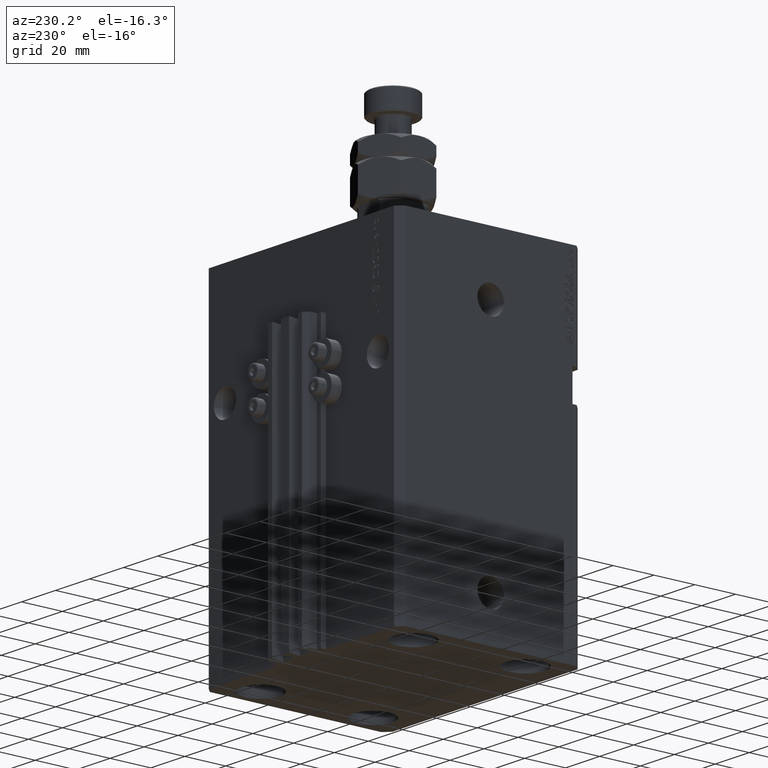
[diagram: clean part render]
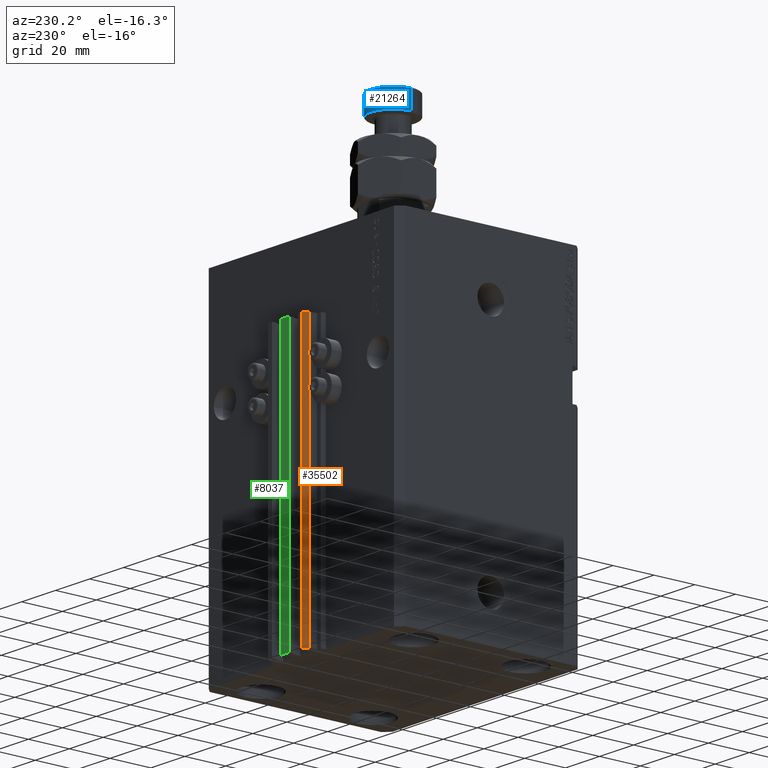
[diagram: same view with three faces highlighted in distinct colors, each labeled with its STEP entity id]
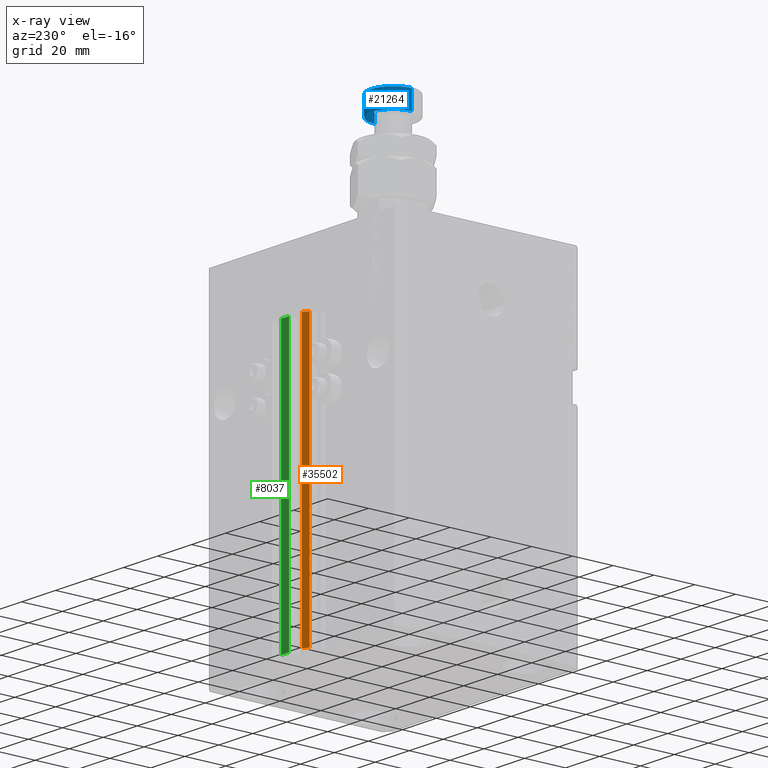
[diagram: x-ray of the same camera — body ghosted, the three highlighted faces saturated]
A machine part, auxiliary view with three faces highlighted in distinct colors.
The next image is the same camera in x-ray (body ghosted, the three faces saturated) — at least one of them is partly hidden behind the body in this view.
Their STEP definitions:

[orange] entity #35502 — the highlighted planar face has unit normal (-0.7071, 0.7071, 0).
#86 = LINE ( 'NONE', #35850, #46999 ) ;
#906 = CARTESIAN_POINT ( 'NONE',  ( -10.00000000000000000, 52.99999999999999289, -165.0000000000000000 ) ) ;
#1109 = DIRECTION ( 'NONE',  ( -0.7071067811865472397, -0.7071067811865479058, 0.000000000000000000 ) ) ;
#2079 = VERTEX_POINT ( 'NONE', #15538 ) ;
#8361 = PLANE ( 'NONE',  #21803 ) ;
#8825 = LINE ( 'NONE', #33261, #27125 ) ;
#11484 = VERTEX_POINT ( 'NONE', #50822 ) ;
#15538 = CARTESIAN_POINT ( 'NONE',  ( -10.00000000000000000, 52.99999999999999289, -33.00000000000000000 ) ) ;
#15765 = CARTESIAN_POINT ( 'NONE',  ( -10.00000000000000000, 52.99999999999999289, -165.0000000000000000 ) ) ;
#15978 = DIRECTION ( 'NONE',  ( 0.000000000000000000, 0.000000000000000000, 1.000000000000000000 ) ) ;
#19427 = FACE_OUTER_BOUND ( 'NONE', #21077, .T. ) ;
#21077 = EDGE_LOOP ( 'NONE', ( #40554, #22708, #44416, #46623 ) ) ;
#21162 = EDGE_CURVE ( 'NONE', #38437, #2079, #86, .T. ) ;
#21220 = EDGE_CURVE ( 'NONE', #2079, #27923, #8825, .T. ) ;
#21803 = AXIS2_PLACEMENT_3D ( 'NONE', #906, #31520, #43375 ) ;
#22708 = ORIENTED_EDGE ( 'NONE', *, *, #21162, .F. ) ;
#23672 = CARTESIAN_POINT ( 'NONE',  ( -12.00000000000000000, 50.99999999999999289, -165.0000000000000000 ) ) ;
#26881 = CARTESIAN_POINT ( 'NONE',  ( -10.00000000000000000, 52.99999999999999289, -165.0000000000000000 ) ) ;
#27125 = VECTOR ( 'NONE', #1109, 999.9999999999998863 ) ;
#27923 = VERTEX_POINT ( 'NONE', #43083 ) ;
#31185 = EDGE_CURVE ( 'NONE', #38437, #11484, #34804, .T. ) ;
#31520 = DIRECTION ( 'NONE',  ( -0.7071067811865479058, 0.7071067811865472397, 0.000000000000000000 ) ) ;
#33261 = CARTESIAN_POINT ( 'NONE',  ( -10.00000000000000000, 52.99999999999999289, -33.00000000000000000 ) ) ;
#34804 = LINE ( 'NONE', #15765, #43946 ) ;
#35502 = ADVANCED_FACE ( 'NONE', ( #19427 ), #8361, .T. ) ;
#35850 = CARTESIAN_POINT ( 'NONE',  ( -10.00000000000000000, 52.99999999999999289, -165.0000000000000000 ) ) ;
#37413 = VECTOR ( 'NONE', #15978, 1000.000000000000000 ) ;
#38437 = VERTEX_POINT ( 'NONE', #26881 ) ;
#40554 = ORIENTED_EDGE ( 'NONE', *, *, #21220, .F. ) ;
#42238 = LINE ( 'NONE', #23672, #37413 ) ;
#43083 = CARTESIAN_POINT ( 'NONE',  ( -12.00000000000000000, 50.99999999999999289, -33.00000000000000000 ) ) ;
#43375 = DIRECTION ( 'NONE',  ( -0.7071067811865472397, -0.7071067811865479058, 0.000000000000000000 ) ) ;
#43827 = DIRECTION ( 'NONE',  ( 0.000000000000000000, 0.000000000000000000, 1.000000000000000000 ) ) ;
#43946 = VECTOR ( 'NONE', #46911, 999.9999999999998863 ) ;
#44416 = ORIENTED_EDGE ( 'NONE', *, *, #31185, .T. ) ;
#46623 = ORIENTED_EDGE ( 'NONE', *, *, #47612, .T. ) ;
#46911 = DIRECTION ( 'NONE',  ( -0.7071067811865472397, -0.7071067811865479058, 0.000000000000000000 ) ) ;
#46999 = VECTOR ( 'NONE', #43827, 1000.000000000000000 ) ;
#47612 = EDGE_CURVE ( 'NONE', #11484, #27923, #42238, .T. ) ;
#50822 = CARTESIAN_POINT ( 'NONE',  ( -12.00000000000000000, 50.99999999999999289, -165.0000000000000000 ) ) ;

[blue] entity #21264 — the highlighted cylindrical surface (edge-blend (fillet) strip) has radius 11 mm, axis along (-0, -0, -1).
#406 = ORIENTED_EDGE ( 'NONE', *, *, #43936, .T. ) ;
#1600 = VERTEX_POINT ( 'NONE', #46235 ) ;
#3688 = CARTESIAN_POINT ( 'NONE',  ( -11.00000000000000000, 0.000000000000000000, 35.50000000000001421 ) ) ;
#4510 = CIRCLE ( 'NONE', #21739, 11.00000000000000000 ) ;
#8138 = EDGE_CURVE ( 'NONE', #44887, #31235, #45845, .T. ) ;
#8236 = CARTESIAN_POINT ( 'NONE',  ( 0.000000000000000000, 0.000000000000000000, 44.50000000000001421 ) ) ;
#8501 = DIRECTION ( 'NONE',  ( 0.000000000000000000, 0.000000000000000000, -1.000000000000000000 ) ) ;
#8505 = CARTESIAN_POINT ( 'NONE',  ( -11.00000000000000000, 0.000000000000000000, 44.50000000000001421 ) ) ;
#11088 = DIRECTION ( 'NONE',  ( -1.000000000000000000, 0.000000000000000000, 0.000000000000000000 ) ) ;
#14139 = EDGE_CURVE ( 'NONE', #34679, #1600, #22376, .T. ) ;
#14954 = CARTESIAN_POINT ( 'NONE',  ( 0.000000000000000000, 0.000000000000000000, 45.00000000000000711 ) ) ;
#17819 = DIRECTION ( 'NONE',  ( -0.000000000000000000, -0.000000000000000000, -1.000000000000000000 ) ) ;
#18213 = ORIENTED_EDGE ( 'NONE', *, *, #8138, .F. ) ;
#18522 = VECTOR ( 'NONE', #38098, 1000.000000000000000 ) ;
#18957 = DIRECTION ( 'NONE',  ( -0.000000000000000000, -0.000000000000000000, 1.000000000000000000 ) ) ;
#21264 = ADVANCED_FACE ( 'NONE', ( #30638 ), #45345, .T. ) ;
#21739 = AXIS2_PLACEMENT_3D ( 'NONE', #8236, #8501, #36295 ) ;
#22302 = DIRECTION ( 'NONE',  ( 1.000000000000000000, 0.000000000000000000, 0.000000000000000000 ) ) ;
#22376 = LINE ( 'NONE', #44836, #18522 ) ;
#28822 = EDGE_LOOP ( 'NONE', ( #406, #41574, #49916, #18213 ) ) ;
#29244 = CIRCLE ( 'NONE', #43943, 11.00000000000000000 ) ;
#30609 = VECTOR ( 'NONE', #50441, 1000.000000000000000 ) ;
#30633 = CARTESIAN_POINT ( 'NONE',  ( -11.00000000000000000, 0.000000000000000000, 45.00000000000000711 ) ) ;
#30638 = FACE_OUTER_BOUND ( 'NONE', #28822, .T. ) ;
#31235 = VERTEX_POINT ( 'NONE', #3688 ) ;
#33936 = EDGE_CURVE ( 'NONE', #1600, #31235, #29244, .T. ) ;
#34679 = VERTEX_POINT ( 'NONE', #37910 ) ;
#36295 = DIRECTION ( 'NONE',  ( 1.000000000000000000, 0.000000000000000000, 0.000000000000000000 ) ) ;
#37910 = CARTESIAN_POINT ( 'NONE',  ( 11.00000000000000000, 1.347111479062088405E-15, 44.50000000000001421 ) ) ;
#38098 = DIRECTION ( 'NONE',  ( -0.000000000000000000, -0.000000000000000000, -1.000000000000000000 ) ) ;
#41574 = ORIENTED_EDGE ( 'NONE', *, *, #14139, .T. ) ;
#42139 = CARTESIAN_POINT ( 'NONE',  ( 0.000000000000000000, 0.000000000000000000, 35.50000000000001421 ) ) ;
#43936 = EDGE_CURVE ( 'NONE', #44887, #34679, #4510, .T. ) ;
#43943 = AXIS2_PLACEMENT_3D ( 'NONE', #42139, #18957, #22302 ) ;
#44548 = AXIS2_PLACEMENT_3D ( 'NONE', #14954, #17819, #11088 ) ;
#44836 = CARTESIAN_POINT ( 'NONE',  ( 11.00000000000000000, 1.347111479062088405E-15, 45.00000000000000711 ) ) ;
#44887 = VERTEX_POINT ( 'NONE', #8505 ) ;
#45345 = CYLINDRICAL_SURFACE ( 'NONE', #44548, 11.00000000000000000 ) ;
#45845 = LINE ( 'NONE', #30633, #30609 ) ;
#46235 = CARTESIAN_POINT ( 'NONE',  ( 11.00000000000000000, 1.347111479062088405E-15, 35.50000000000001421 ) ) ;
#49916 = ORIENTED_EDGE ( 'NONE', *, *, #33936, .T. ) ;
#50441 = DIRECTION ( 'NONE',  ( -0.000000000000000000, -0.000000000000000000, -1.000000000000000000 ) ) ;

[green] entity #8037 — the highlighted planar face has unit normal (0, -1, 0).
#1370 = DIRECTION ( 'NONE',  ( 0.000000000000000000, -0.000000000000000000, -1.000000000000000000 ) ) ;
#3372 = EDGE_LOOP ( 'NONE', ( #12716, #44106, #9552, #29408 ) ) ;
#8037 = ADVANCED_FACE ( 'NONE', ( #36356 ), #9057, .F. ) ;
#8082 = CARTESIAN_POINT ( 'NONE',  ( -2.350000000000003642, 53.00000000000000000, -33.00000000000000000 ) ) ;
#9057 = PLANE ( 'NONE',  #33926 ) ;
#9552 = ORIENTED_EDGE ( 'NONE', *, *, #22516, .F. ) ;
#10594 = VERTEX_POINT ( 'NONE', #44148 ) ;
#12716 = ORIENTED_EDGE ( 'NONE', *, *, #33494, .T. ) ;
#18229 = EDGE_CURVE ( 'NONE', #10594, #27961, #31356, .T. ) ;
#18763 = CARTESIAN_POINT ( 'NONE',  ( -2.350000000000003642, 53.00000000000000000, -165.0000000000000000 ) ) ;
#21397 = DIRECTION ( 'NONE',  ( 0.000000000000000000, -1.000000000000000000, 0.000000000000000000 ) ) ;
#21412 = CARTESIAN_POINT ( 'NONE',  ( -2.350000000000003642, 53.00000000000000000, -33.00000000000000000 ) ) ;
#21645 = CARTESIAN_POINT ( 'NONE',  ( -2.350000000000003642, 53.00000000000000000, -165.0000000000000000 ) ) ;
#22516 = EDGE_CURVE ( 'NONE', #10594, #30307, #31873, .T. ) ;
#23867 = CARTESIAN_POINT ( 'NONE',  ( -2.350000000000003642, 53.00000000000000000, -165.0000000000000000 ) ) ;
#26319 = CARTESIAN_POINT ( 'NONE',  ( 2.349999999999999645, 53.00000000000000000, -165.0000000000000000 ) ) ;
#27961 = VERTEX_POINT ( 'NONE', #8082 ) ;
#29408 = ORIENTED_EDGE ( 'NONE', *, *, #18229, .T. ) ;
#30307 = VERTEX_POINT ( 'NONE', #26319 ) ;
#30847 = EDGE_CURVE ( 'NONE', #30307, #34227, #33145, .T. ) ;
#31356 = LINE ( 'NONE', #18763, #39507 ) ;
#31873 = LINE ( 'NONE', #23867, #42789 ) ;
#33011 = DIRECTION ( 'NONE',  ( 1.000000000000000000, 0.000000000000000000, 0.000000000000000000 ) ) ;
#33145 = LINE ( 'NONE', #48852, #38162 ) ;
#33494 = EDGE_CURVE ( 'NONE', #27961, #34227, #49215, .T. ) ;
#33926 = AXIS2_PLACEMENT_3D ( 'NONE', #21645, #21397, #1370 ) ;
#34227 = VERTEX_POINT ( 'NONE', #40854 ) ;
#36356 = FACE_OUTER_BOUND ( 'NONE', #3372, .T. ) ;
#38162 = VECTOR ( 'NONE', #48093, 1000.000000000000000 ) ;
#39507 = VECTOR ( 'NONE', #50406, 1000.000000000000000 ) ;
#40854 = CARTESIAN_POINT ( 'NONE',  ( 2.349999999999999645, 53.00000000000000000, -33.00000000000000000 ) ) ;
#42789 = VECTOR ( 'NONE', #50395, 1000.000000000000000 ) ;
#44106 = ORIENTED_EDGE ( 'NONE', *, *, #30847, .F. ) ;
#44148 = CARTESIAN_POINT ( 'NONE',  ( -2.350000000000003642, 53.00000000000000000, -165.0000000000000000 ) ) ;
#48093 = DIRECTION ( 'NONE',  ( 0.000000000000000000, 0.000000000000000000, 1.000000000000000000 ) ) ;
#48181 = VECTOR ( 'NONE', #33011, 1000.000000000000000 ) ;
#48852 = CARTESIAN_POINT ( 'NONE',  ( 2.349999999999999645, 53.00000000000000000, -165.0000000000000000 ) ) ;
#49215 = LINE ( 'NONE', #21412, #48181 ) ;
#50395 = DIRECTION ( 'NONE',  ( 1.000000000000000000, 0.000000000000000000, 0.000000000000000000 ) ) ;
#50406 = DIRECTION ( 'NONE',  ( 0.000000000000000000, 0.000000000000000000, 1.000000000000000000 ) ) ;